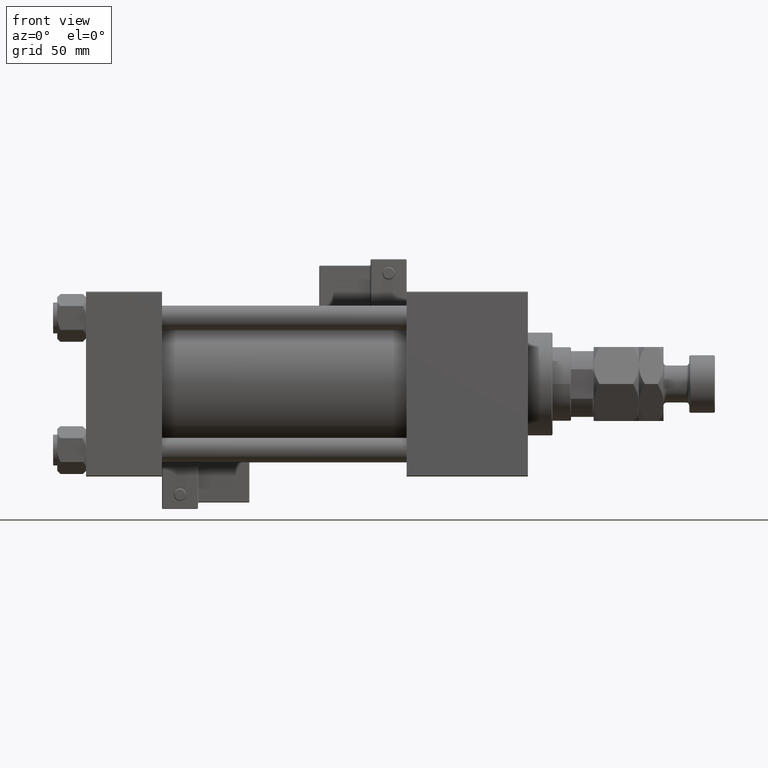
[diagram: clean part render]
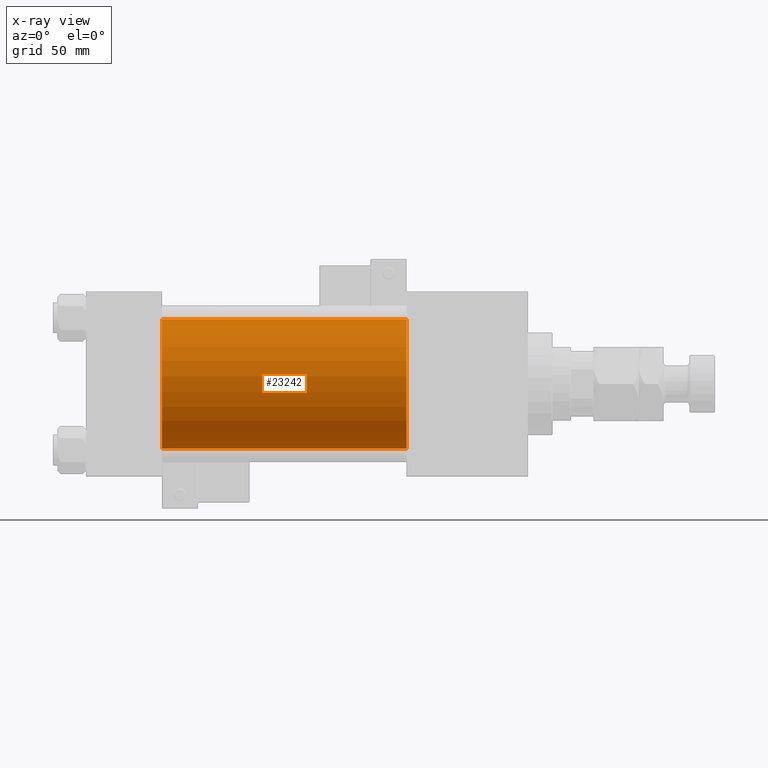
[diagram: x-ray — body ghosted, one internal face saturated and labeled with its STEP entity id]
A machine part, front view, then the same camera in x-ray: the body is ghosted and one INTERNAL B-rep face — a face not visible from any outside direction — is saturated and labeled: STEP entity #23242.
In plain terms, the highlighted cylindrical surface (partial cylindrical patch) has radius 31.5 mm, axis along (-1, -0, -0).
Its self-contained STEP definition (entity closure, byte-faithful):
#3648 = FACE_OUTER_BOUND ( 'NONE', #44993, .T. ) ;
#5319 = VERTEX_POINT ( 'NONE', #14264 ) ;
#7134 = VERTEX_POINT ( 'NONE', #39054 ) ;
#8775 = CIRCLE ( 'NONE', #53389, 31.50000000000000000 ) ;
#11840 = EDGE_CURVE ( 'NONE', #5319, #7134, #8775, .T. ) ;
#14128 = ORIENTED_EDGE ( 'NONE', *, *, #45922, .T. ) ;
#14159 = VERTEX_POINT ( 'NONE', #34240 ) ;
#14264 = CARTESIAN_POINT ( 'NONE',  ( 156.0000000000000000, -2.602085213965210642E-15, 31.50000000000000000 ) ) ;
#14825 = DIRECTION ( 'NONE',  ( 0.000000000000000000, 0.000000000000000000, -1.000000000000000000 ) ) ;
#15380 = DIRECTION ( 'NONE',  ( 0.000000000000000000, 0.000000000000000000, -1.000000000000000000 ) ) ;
#16495 = CARTESIAN_POINT ( 'NONE',  ( 156.0000000000000000, -2.602085213965210642E-15, 0.000000000000000000 ) ) ;
#17447 = VECTOR ( 'NONE', #44040, 1000.000000000000000 ) ;
#19240 = EDGE_CURVE ( 'NONE', #5319, #14159, #43479, .T. ) ;
#20622 = CYLINDRICAL_SURFACE ( 'NONE', #41937, 31.50000000000000000 ) ;
#21862 = ORIENTED_EDGE ( 'NONE', *, *, #22520, .F. ) ;
#22412 = CARTESIAN_POINT ( 'NONE',  ( 156.0000000000000000, -2.602085213965210642E-15, 31.50000000000000000 ) ) ;
#22520 = EDGE_CURVE ( 'NONE', #14159, #29349, #49759, .T. ) ;
#23242 = ADVANCED_FACE ( 'NONE', ( #3648 ), #20622, .F. ) ;
#24081 = CARTESIAN_POINT ( 'NONE',  ( 37.00000000000000000, 1.255552203348951850E-15, -31.50000000000000000 ) ) ;
#28307 = DIRECTION ( 'NONE',  ( -1.000000000000000000, -0.000000000000000000, -0.000000000000000000 ) ) ;
#29349 = VERTEX_POINT ( 'NONE', #24081 ) ;
#32346 = LINE ( 'NONE', #40298, #32528 ) ;
#32528 = VECTOR ( 'NONE', #41089, 1000.000000000000000 ) ;
#34240 = CARTESIAN_POINT ( 'NONE',  ( 37.00000000000000000, -2.602085213965210642E-15, 31.50000000000000000 ) ) ;
#34912 = AXIS2_PLACEMENT_3D ( 'NONE', #48238, #38644, #14825 ) ;
#36174 = ORIENTED_EDGE ( 'NONE', *, *, #19240, .F. ) ;
#36200 = CARTESIAN_POINT ( 'NONE',  ( 156.0000000000000000, -2.602085213965210642E-15, 0.000000000000000000 ) ) ;
#38644 = DIRECTION ( 'NONE',  ( 1.000000000000000000, 0.000000000000000000, 0.000000000000000000 ) ) ;
#39054 = CARTESIAN_POINT ( 'NONE',  ( 156.0000000000000000, 1.255552203348951850E-15, -31.50000000000000000 ) ) ;
#40298 = CARTESIAN_POINT ( 'NONE',  ( 156.0000000000000000, 1.255552203348951850E-15, -31.50000000000000000 ) ) ;
#41089 = DIRECTION ( 'NONE',  ( -1.000000000000000000, -0.000000000000000000, -0.000000000000000000 ) ) ;
#41937 = AXIS2_PLACEMENT_3D ( 'NONE', #16495, #28307, #52969 ) ;
#43479 = LINE ( 'NONE', #22412, #17447 ) ;
#44040 = DIRECTION ( 'NONE',  ( -1.000000000000000000, -0.000000000000000000, -0.000000000000000000 ) ) ;
#44993 = EDGE_LOOP ( 'NONE', ( #53029, #14128, #21862, #36174 ) ) ;
#45922 = EDGE_CURVE ( 'NONE', #7134, #29349, #32346, .T. ) ;
#48238 = CARTESIAN_POINT ( 'NONE',  ( 37.00000000000000000, -2.602085213965210642E-15, 0.000000000000000000 ) ) ;
#49759 = CIRCLE ( 'NONE', #34912, 31.50000000000000000 ) ;
#52906 = DIRECTION ( 'NONE',  ( 1.000000000000000000, 0.000000000000000000, 0.000000000000000000 ) ) ;
#52969 = DIRECTION ( 'NONE',  ( 0.000000000000000000, 0.000000000000000000, 1.000000000000000000 ) ) ;
#53029 = ORIENTED_EDGE ( 'NONE', *, *, #11840, .T. ) ;
#53389 = AXIS2_PLACEMENT_3D ( 'NONE', #36200, #52906, #15380 ) ;